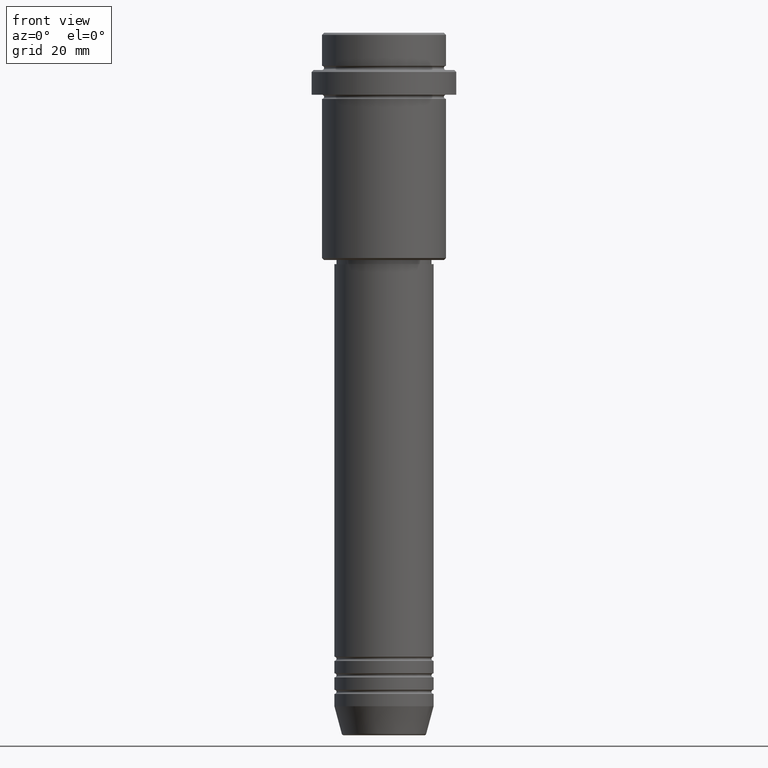
[diagram: clean part render]
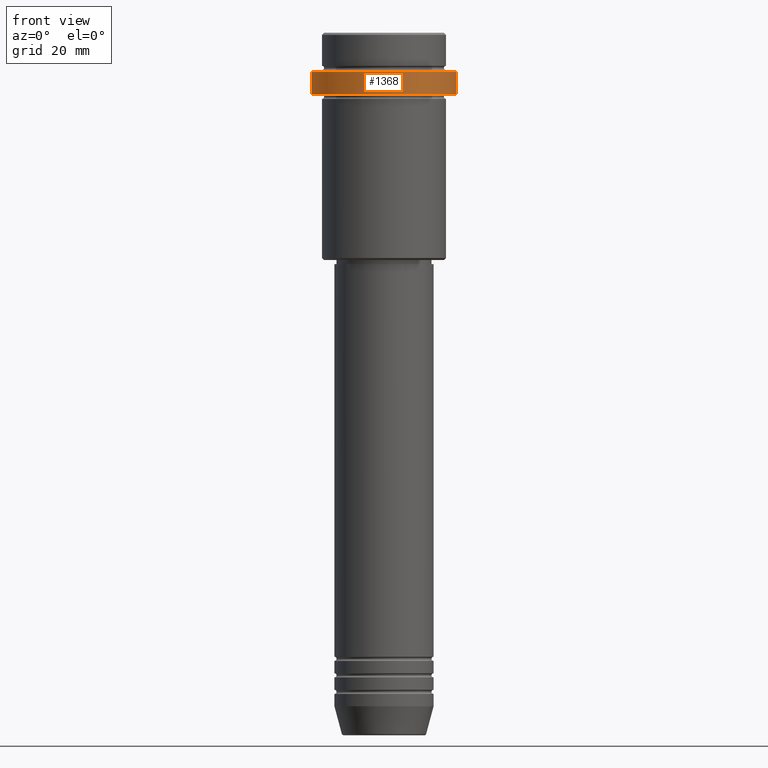
[diagram: same view with one face highlighted and labeled with its STEP entity id]
A machine part, front view. The second image highlights one B-rep face of the part: STEP entity #1368.
In plain terms, the highlighted cylindrical surface (partial cylindrical patch) has radius 17.5 mm, axis along (-0, -0, 1).
Its self-contained STEP definition (entity closure, byte-faithful):
#10 = LINE ( 'NONE', #782, #464 ) ;
#82 = CIRCLE ( 'NONE', #1083, 17.50000000000000000 ) ;
#116 = EDGE_CURVE ( 'NONE', #1370, #516, #309, .T. ) ;
#140 = ORIENTED_EDGE ( 'NONE', *, *, #736, .T. ) ;
#147 = VERTEX_POINT ( 'NONE', #738 ) ;
#294 = AXIS2_PLACEMENT_3D ( 'NONE', #755, #1173, #648 ) ;
#309 = CIRCLE ( 'NONE', #929, 17.50000000000000000 ) ;
#425 = CARTESIAN_POINT ( 'NONE',  ( -17.50000000000000000, 2.143131898507868248E-15, -9.500000000000015987 ) ) ;
#464 = VECTOR ( 'NONE', #1220, 1000.000000000000000 ) ;
#510 = VECTOR ( 'NONE', #1100, 1000.000000000000000 ) ;
#515 = DIRECTION ( 'NONE',  ( -0.000000000000000000, -0.000000000000000000, 1.000000000000000000 ) ) ;
#516 = VERTEX_POINT ( 'NONE', #647 ) ;
#555 = CARTESIAN_POINT ( 'NONE',  ( 0.000000000000000000, 0.000000000000000000, -9.500000000000015987 ) ) ;
#634 = ORIENTED_EDGE ( 'NONE', *, *, #1158, .T. ) ;
#647 = CARTESIAN_POINT ( 'NONE',  ( 17.50000000000000000, 0.000000000000000000, -14.99999999999998757 ) ) ;
#648 = DIRECTION ( 'NONE',  ( 1.000000000000000000, 0.000000000000000000, 0.000000000000000000 ) ) ;
#677 = ORIENTED_EDGE ( 'NONE', *, *, #116, .T. ) ;
#724 = DIRECTION ( 'NONE',  ( 1.000000000000000000, 0.000000000000000000, 0.000000000000000000 ) ) ;
#736 = EDGE_CURVE ( 'NONE', #147, #784, #82, .T. ) ;
#738 = CARTESIAN_POINT ( 'NONE',  ( 17.50000000000000000, 0.000000000000000000, -9.500000000000015987 ) ) ;
#747 = ORIENTED_EDGE ( 'NONE', *, *, #872, .F. ) ;
#755 = CARTESIAN_POINT ( 'NONE',  ( 0.000000000000000000, 0.000000000000000000, 0.000000000000000000 ) ) ;
#782 = CARTESIAN_POINT ( 'NONE',  ( 17.50000000000000000, 0.000000000000000000, 0.000000000000000000 ) ) ;
#784 = VERTEX_POINT ( 'NONE', #425 ) ;
#785 = CARTESIAN_POINT ( 'NONE',  ( -17.50000000000000000, 2.143131898507868248E-15, 0.000000000000000000 ) ) ;
#859 = EDGE_LOOP ( 'NONE', ( #747, #677, #634, #140 ) ) ;
#868 = FACE_OUTER_BOUND ( 'NONE', #859, .T. ) ;
#872 = EDGE_CURVE ( 'NONE', #1370, #784, #994, .T. ) ;
#878 = DIRECTION ( 'NONE',  ( 1.000000000000000000, 0.000000000000000000, 0.000000000000000000 ) ) ;
#929 = AXIS2_PLACEMENT_3D ( 'NONE', #1254, #515, #724 ) ;
#965 = CARTESIAN_POINT ( 'NONE',  ( -17.50000000000000000, 2.143131898507868248E-15, -14.99999999999998757 ) ) ;
#994 = LINE ( 'NONE', #785, #510 ) ;
#1083 = AXIS2_PLACEMENT_3D ( 'NONE', #555, #1302, #878 ) ;
#1100 = DIRECTION ( 'NONE',  ( -0.000000000000000000, -0.000000000000000000, 1.000000000000000000 ) ) ;
#1158 = EDGE_CURVE ( 'NONE', #516, #147, #10, .T. ) ;
#1173 = DIRECTION ( 'NONE',  ( -0.000000000000000000, -0.000000000000000000, 1.000000000000000000 ) ) ;
#1220 = DIRECTION ( 'NONE',  ( -0.000000000000000000, -0.000000000000000000, 1.000000000000000000 ) ) ;
#1254 = CARTESIAN_POINT ( 'NONE',  ( 0.000000000000000000, 0.000000000000000000, -14.99999999999998757 ) ) ;
#1302 = DIRECTION ( 'NONE',  ( 0.000000000000000000, 0.000000000000000000, -1.000000000000000000 ) ) ;
#1368 = ADVANCED_FACE ( 'NONE', ( #868 ), #1396, .T. ) ;
#1370 = VERTEX_POINT ( 'NONE', #965 ) ;
#1396 = CYLINDRICAL_SURFACE ( 'NONE', #294, 17.50000000000000000 ) ;